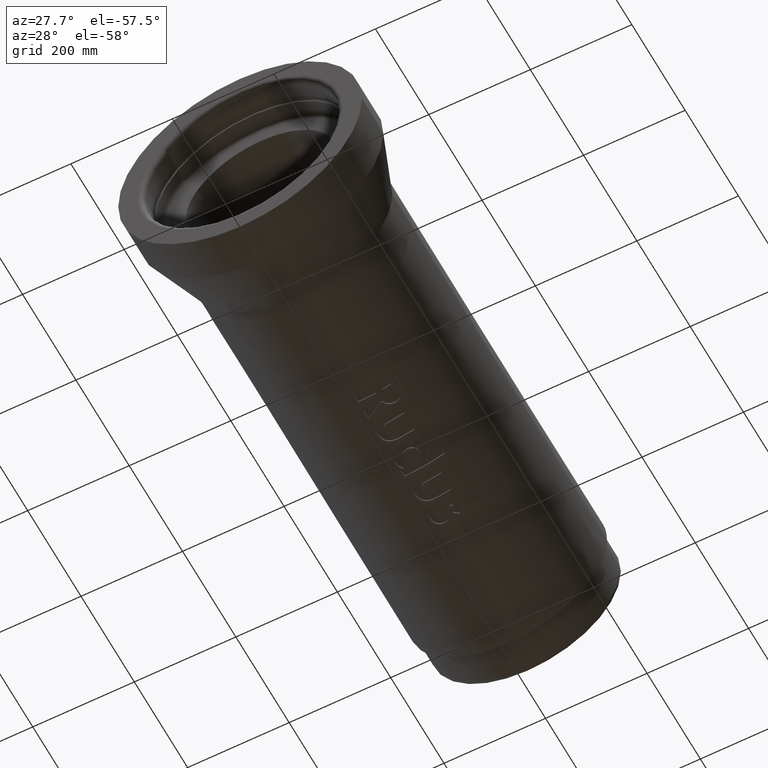
[diagram: clean part render]
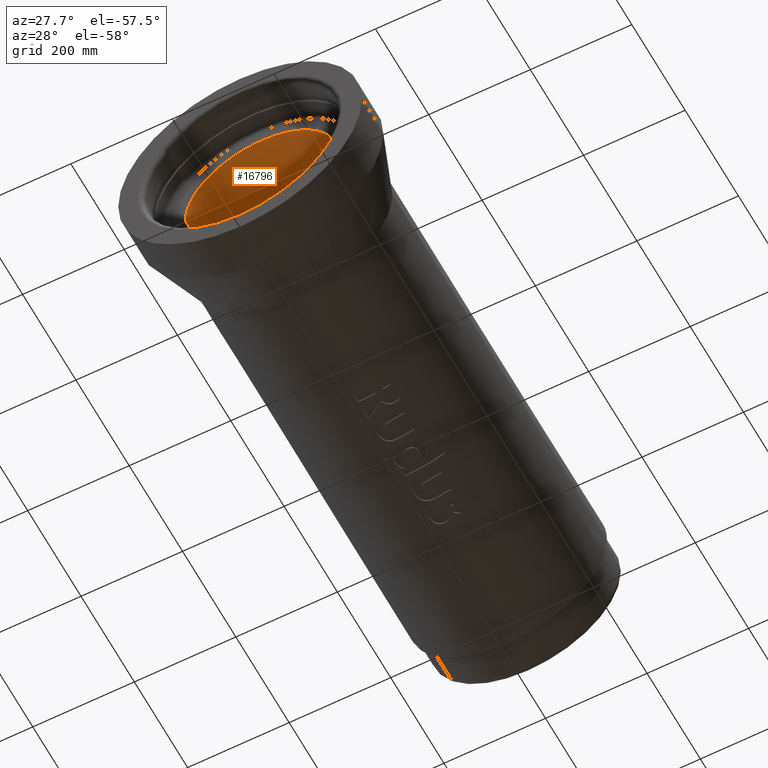
[diagram: same view with one face highlighted and labeled with its STEP entity id]
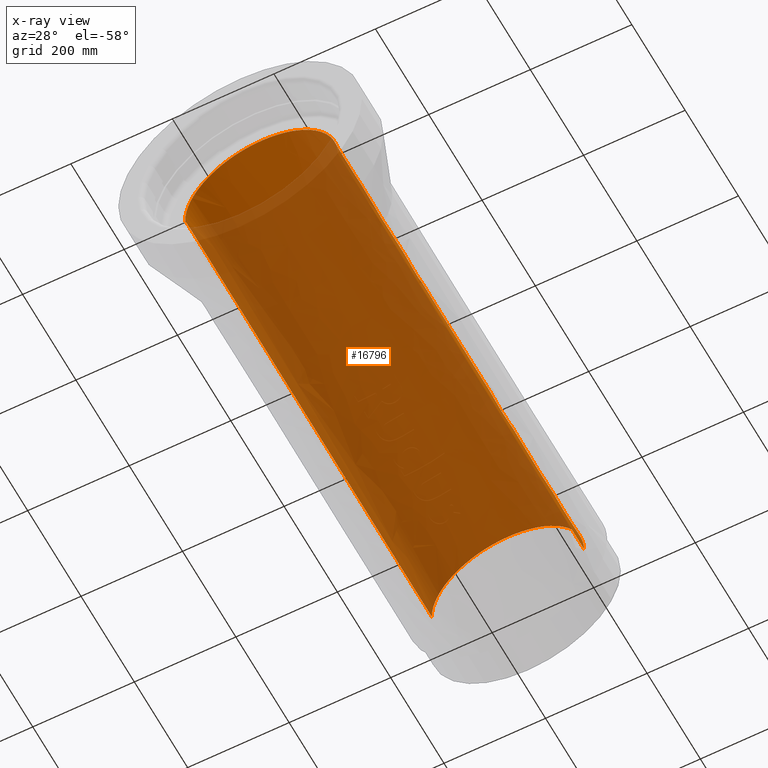
[diagram: x-ray of the same camera — body ghosted, the highlighted face saturated]
A machine part, auxiliary view. The second image highlights one B-rep face of the part: STEP entity #16796.
The next image is the same camera in x-ray: the body ghosted, the highlighted face saturated — about 90% of this face is hidden behind the body in this view.
In plain terms, the highlighted face is a freeform B-spline surface patch.
Its self-contained STEP definition (entity closure, byte-faithful):
#116 = DIRECTION ( 'NONE',  ( 0.0000000000000000000, 0.0000000000000000000, 1.000000000000000000 ) ) ;
#129 = AXIS2_PLACEMENT_3D ( 'NONE', #21053, #4867, #11941 ) ;
#145 = DIRECTION ( 'NONE',  ( 0.0000000000000000000, 0.0000000000000000000, 1.000000000000000000 ) ) ;
#256 = CARTESIAN_POINT ( 'NONE',  ( 144.0987270862369769, -52.83484027567126162, 616.6666666666667425 ) ) ;
#275 = ORIENTED_EDGE ( 'NONE', *, *, #18748, .F. ) ;
#369 = CARTESIAN_POINT ( 'NONE',  ( 77.93635652528307389, -134.1956778306810918, 616.6666666666667425 ) ) ;
#488 = CARTESIAN_POINT ( 'NONE',  ( 128.5697457001414250, -83.56228865582255594, 0.0000000000000000000 ) ) ;
#500 = DIRECTION ( 'NONE',  ( 1.000000000000000000, 0.0000000000000000000, 0.0000000000000000000 ) ) ;
#603 = CARTESIAN_POINT ( 'NONE',  ( 149.9999999999999716, -1.989067379999889695, 925.0000000000000000 ) ) ;
#623 = CIRCLE ( 'NONE', #18715, 150.0000000000000284 ) ;
#724 = CARTESIAN_POINT ( 'NONE',  ( -39.78134759999981895, -149.9999999999999716, 308.3333333333333712 ) ) ;
#733 = CARTESIAN_POINT ( 'NONE',  ( -150.0000000000000000, -1.332267629550188101E-13, 925.0000000000000000 ) ) ;
#806 = CARTESIAN_POINT ( 'NONE',  ( 0.0000000000000000000, 0.0000000000000000000, 0.0000000000000000000 ) ) ;
#950 = CARTESIAN_POINT ( 'NONE',  ( 144.0987270862370622, 52.83484027567155294, 308.3333333333333712 ) ) ;
#1024 = CARTESIAN_POINT ( 'NONE',  ( 0.0000000000000000000, 0.0000000000000000000, 0.0000000000000000000 ) ) ;
#1066 = CARTESIAN_POINT ( 'NONE',  ( 149.9209783891533618, 5.959070446626506978, 0.0000000000000000000 ) ) ;
#1174 = CARTESIAN_POINT ( 'NONE',  ( 128.5697457001414818, 83.56228865582281173, 925.0000000000000000 ) ) ;
#1280 = ORIENTED_EDGE ( 'NONE', *, *, #7692, .F. ) ;
#1289 = CARTESIAN_POINT ( 'NONE',  ( -42.27785154931257239, -143.9186689362234972, 925.0000000000000000 ) ) ;
#1768 = AXIS2_PLACEMENT_3D ( 'NONE', #14487, #5400, #11032 ) ;
#1866 = CIRCLE ( 'NONE', #15074, 150.0000000000000284 ) ;
#1888 = DIRECTION ( 'NONE',  ( 1.000000000000000000, 0.0000000000000000000, 0.0000000000000000000 ) ) ;
#1918 = VERTEX_POINT ( 'NONE', #4773 ) ;
#1999 = CARTESIAN_POINT ( 'NONE',  ( 131.6608222679265054, -71.87091122097643847, 0.0000000000000000000 ) ) ;
#2013 = CARTESIAN_POINT ( 'NONE',  ( 128.5697457001414250, -83.56228865582255594, 616.6666666666667425 ) ) ;
#2015 = DIRECTION ( 'NONE',  ( 0.0000000000000000000, 0.0000000000000000000, 1.000000000000000000 ) ) ;
#2126 = CARTESIAN_POINT ( 'NONE',  ( -77.93635652528283231, -134.1956778306812623, 308.3333333333333712 ) ) ;
#2242 = CARTESIAN_POINT ( 'NONE',  ( 149.9999999999999716, 1.320558246087344401E-13, 616.6666666666667425 ) ) ;
#2259 = ORIENTED_EDGE ( 'NONE', *, *, #2950, .T. ) ;
#2272 = DIRECTION ( 'NONE',  ( 1.000000000000000000, 0.0000000000000000000, 0.0000000000000000000 ) ) ;
#2325 = CARTESIAN_POINT ( 'NONE',  ( 150.0000000000000284, 1.148570609678084874E-13, 925.0000000000000000 ) ) ;
#2452 = CARTESIAN_POINT ( 'NONE',  ( 150.0000000000000284, 0.0000000000000000000, 0.0000000000000000000 ) ) ;
#2579 = CIRCLE ( 'NONE', #5331, 150.0000000000000284 ) ;
#2593 = CIRCLE ( 'NONE', #15032, 150.0000000000000284 ) ;
#2706 = CARTESIAN_POINT ( 'NONE',  ( -39.78134760000001791, 149.9999999999999716, 0.0000000000000000000 ) ) ;
#2720 = EDGE_CURVE ( 'NONE', #16212, #20015, #22361, .T. ) ;
#2819 = CARTESIAN_POINT ( 'NONE',  ( -134.1956778306812907, 77.93635652528286073, 925.0000000000000000 ) ) ;
#2836 = VERTEX_POINT ( 'NONE', #8457 ) ;
#2931 = CARTESIAN_POINT ( 'NONE',  ( -77.93635652528300284, 134.1956778306812623, 0.0000000000000000000 ) ) ;
#2950 = EDGE_CURVE ( 'NONE', #15237, #21206, #10617, .T. ) ;
#2995 = VERTEX_POINT ( 'NONE', #6459 ) ;
#3046 = CARTESIAN_POINT ( 'NONE',  ( 39.78134759999996106, 149.9999999999999716, 308.3333333333333712 ) ) ;
#3217 = CIRCLE ( 'NONE', #6245, 150.0000000000000284 ) ;
#3255 = ORIENTED_EDGE ( 'NONE', *, *, #8690, .T. ) ;
#3397 = CIRCLE ( 'NONE', #10154, 150.0000000000000284 ) ;
#3774 = DIRECTION ( 'NONE',  ( 0.0000000000000000000, 0.0000000000000000000, 1.000000000000000000 ) ) ;
#3905 = CARTESIAN_POINT ( 'NONE',  ( 39.78134760000010317, -149.9999999999998579, 308.3333333333333712 ) ) ;
#3937 = ORIENTED_EDGE ( 'NONE', *, *, #21136, .F. ) ;
#4016 = AXIS2_PLACEMENT_3D ( 'NONE', #5371, #12562, #9130 ) ;
#4021 = CARTESIAN_POINT ( 'NONE',  ( -150.0000000000000000, 39.78134759999987580, 308.3333333333333712 ) ) ;
#4106 = AXIS2_PLACEMENT_3D ( 'NONE', #21314, #10649, #5130 ) ;
#4134 = CARTESIAN_POINT ( 'NONE',  ( 149.9999999999999716, 1.318389841742373392E-13, 308.3333333333333712 ) ) ;
#4229 = CARTESIAN_POINT ( 'NONE',  ( 42.27785154879317986, -143.9186689363760365, 2.775557561562891351E-14 ) ) ;
#4250 = CARTESIAN_POINT ( 'NONE',  ( 77.93635652528307389, -134.1956778306810918, 925.0000000000000000 ) ) ;
#4260 = CARTESIAN_POINT ( 'NONE',  ( -150.0000000000000000, -3.244851242983822784E-14, 5.551115123125782702E-14 ) ) ;
#4271 = CIRCLE ( 'NONE', #7284, 150.0000000000000284 ) ;
#4339 = DIRECTION ( 'NONE',  ( 0.0000000000000000000, 0.0000000000000000000, 1.000000000000000000 ) ) ;
#4414 = CARTESIAN_POINT ( 'NONE',  ( 0.0000000000000000000, 0.0000000000000000000, 925.0000000000000000 ) ) ;
#4479 = CARTESIAN_POINT ( 'NONE',  ( 144.0987270862370622, 52.83484027567155294, 616.6666666666667425 ) ) ;
#4597 = CARTESIAN_POINT ( 'NONE',  ( 148.9831560100520846, 17.77069737734988308, 616.6666666666667425 ) ) ;
#4656 = CARTESIAN_POINT ( 'NONE',  ( 0.0000000000000000000, 0.0000000000000000000, 925.0000000000000000 ) ) ;
#4702 = ORIENTED_EDGE ( 'NONE', *, *, #17115, .T. ) ;
#4709 = CARTESIAN_POINT ( 'NONE',  ( -77.93635652528300284, 134.1956778306812623, 925.0000000000000000 ) ) ;
#4773 = CARTESIAN_POINT ( 'NONE',  ( 5.551115123125782702E-14, -150.0000000000000284, 2.775557561562891351E-14 ) ) ;
#4820 = CARTESIAN_POINT ( 'NONE',  ( 149.9999999999999716, 1.989067380000117957, 308.3333333333333712 ) ) ;
#4843 = EDGE_CURVE ( 'NONE', #21245, #2995, #4271, .T. ) ;
#4867 = DIRECTION ( 'NONE',  ( 0.0000000000000000000, 0.0000000000000000000, 1.000000000000000000 ) ) ;
#5019 = VERTEX_POINT ( 'NONE', #5602 ) ;
#5130 = DIRECTION ( 'NONE',  ( 1.000000000000000000, 0.0000000000000000000, 0.0000000000000000000 ) ) ;
#5251 = CIRCLE ( 'NONE', #18456, 150.0000000000000284 ) ;
#5292 = CARTESIAN_POINT ( 'NONE',  ( 0.0000000000000000000, 0.0000000000000000000, 925.0000000000000000 ) ) ;
#5320 = DIRECTION ( 'NONE',  ( 1.000000000000000000, 0.0000000000000000000, 0.0000000000000000000 ) ) ;
#5331 = AXIS2_PLACEMENT_3D ( 'NONE', #5292, #12245, #22896 ) ;
#5371 = CARTESIAN_POINT ( 'NONE',  ( 0.0000000000000000000, 0.0000000000000000000, 925.0000000000000000 ) ) ;
#5400 = DIRECTION ( 'NONE',  ( 0.0000000000000000000, 0.0000000000000000000, 1.000000000000000000 ) ) ;
#5602 = CARTESIAN_POINT ( 'NONE',  ( -150.0000000000000000, -3.244851242983822784E-14, 5.551115123125782702E-14 ) ) ;
#5669 = CARTESIAN_POINT ( 'NONE',  ( -39.78134759999981895, -149.9999999999999432, 616.6666666666667425 ) ) ;
#5785 = CARTESIAN_POINT ( 'NONE',  ( -149.9999999999998863, -39.78134760000004633, 0.0000000000000000000 ) ) ;
#5787 = DIRECTION ( 'NONE',  ( 1.000000000000000000, 0.0000000000000000000, 0.0000000000000000000 ) ) ;
#5794 = CARTESIAN_POINT ( 'NONE',  ( -106.0660171779820615, -106.0660171779822321, 925.0000000000000000 ) ) ;
#5832 = DIRECTION ( 'NONE',  ( 1.000000000000000000, 0.0000000000000000000, 0.0000000000000000000 ) ) ;
#5904 = CARTESIAN_POINT ( 'NONE',  ( -134.1956778306811771, -77.93635652528300284, 0.0000000000000000000 ) ) ;
#6023 = CARTESIAN_POINT ( 'NONE',  ( 128.5697457001414250, -83.56228865582255594, 308.3333333333333712 ) ) ;
#6075 = CARTESIAN_POINT ( 'NONE',  ( 42.27785154890892017, -143.9186689363420726, 925.0000000000000000 ) ) ;
#6231 = AXIS2_PLACEMENT_3D ( 'NONE', #4414, #15498, #6302 ) ;
#6245 = AXIS2_PLACEMENT_3D ( 'NONE', #7903, #16422, #12979 ) ;
#6302 = DIRECTION ( 'NONE',  ( 1.000000000000000000, 0.0000000000000000000, 0.0000000000000000000 ) ) ;
#6372 = CARTESIAN_POINT ( 'NONE',  ( -134.1956778306812907, 77.93635652528286073, 308.3333333333333712 ) ) ;
#6459 = CARTESIAN_POINT ( 'NONE',  ( -71.87091121979602804, -131.6608222685708824, 925.0000000000000000 ) ) ;
#6485 = CARTESIAN_POINT ( 'NONE',  ( 149.9999999999999716, 1.989067380000117957, 925.0000000000000000 ) ) ;
#6514 = VERTEX_POINT ( 'NONE', #6075 ) ;
#6597 = CARTESIAN_POINT ( 'NONE',  ( 128.5697457001414818, 83.56228865582281173, 616.6666666666667425 ) ) ;
#6993 = ORIENTED_EDGE ( 'NONE', *, *, #11576, .T. ) ;
#7000 = ORIENTED_EDGE ( 'NONE', *, *, #7724, .T. ) ;
#7284 = AXIS2_PLACEMENT_3D ( 'NONE', #9005, #17754, #15870 ) ;
#7318 = CARTESIAN_POINT ( 'NONE',  ( -71.87091121990188469, -131.6608222685130443, 5.551115123125782702E-14 ) ) ;
#7319 = CARTESIAN_POINT ( 'NONE',  ( -143.9186689346923913, -42.27785155452446730, 5.551115123125782702E-14 ) ) ;
#7409 = DIRECTION ( 'NONE',  ( 1.000000000000000000, 0.0000000000000000000, 0.0000000000000000000 ) ) ;
#7433 = CARTESIAN_POINT ( 'NONE',  ( -77.93635652528283231, -134.1956778306812623, 0.0000000000000000000 ) ) ;
#7544 = CARTESIAN_POINT ( 'NONE',  ( -149.9999999999998863, -39.78134760000004633, 925.0000000000000000 ) ) ;
#7659 = CARTESIAN_POINT ( 'NONE',  ( 149.9999999999999716, 1.320558246087344401E-13, 0.0000000000000000000 ) ) ;
#7692 = EDGE_CURVE ( 'NONE', #1918, #22396, #21306, .T. ) ;
#7698 = DIRECTION ( 'NONE',  ( 0.0000000000000000000, 0.0000000000000000000, 1.000000000000000000 ) ) ;
#7724 = EDGE_CURVE ( 'NONE', #18447, #21245, #16403, .T. ) ;
#7778 = CARTESIAN_POINT ( 'NONE',  ( 144.0987270862369769, -52.83484027567126162, 308.3333333333333712 ) ) ;
#7895 = CARTESIAN_POINT ( 'NONE',  ( -77.93635652528283231, -134.1956778306812623, 616.6666666666667425 ) ) ;
#7903 = CARTESIAN_POINT ( 'NONE',  ( 0.0000000000000000000, 0.0000000000000000000, 925.0000000000000000 ) ) ;
#7904 = DIRECTION ( 'NONE',  ( 1.000000000000000000, 0.0000000000000000000, 0.0000000000000000000 ) ) ;
#7910 = ORIENTED_EDGE ( 'NONE', *, *, #9439, .F. ) ;
#7953 = ORIENTED_EDGE ( 'NONE', *, *, #15383, .F. ) ;
#7990 = EDGE_CURVE ( 'NONE', #11011, #21909, #17159, .T. ) ;
#8018 = CARTESIAN_POINT ( 'NONE',  ( -149.9999999999999147, -8.326672684688674053E-14, 616.6666666666667425 ) ) ;
#8119 = CARTESIAN_POINT ( 'NONE',  ( -39.78134760000001791, 149.9999999999999716, 308.3333333333333712 ) ) ;
#8234 = CARTESIAN_POINT ( 'NONE',  ( 149.9209783891533618, 5.959070446626506978, 308.3333333333333712 ) ) ;
#8347 = CARTESIAN_POINT ( 'NONE',  ( 144.0987270862370622, 52.83484027567154584, 925.0000000000000000 ) ) ;
#8377 = ORIENTED_EDGE ( 'NONE', *, *, #15069, .F. ) ;
#8457 = CARTESIAN_POINT ( 'NONE',  ( -143.9186689346583989, -42.27785155464021472, 925.0000000000000000 ) ) ;
#8463 = CARTESIAN_POINT ( 'NONE',  ( 149.9999999999999716, 1.320558246087344401E-13, 925.0000000000000000 ) ) ;
#8634 = ORIENTED_EDGE ( 'NONE', *, *, #11744, .T. ) ;
#8690 = EDGE_CURVE ( 'NONE', #21909, #15237, #16417, .T. ) ;
#8706 = VERTEX_POINT ( 'NONE', #7318 ) ;
#8713 = DIRECTION ( 'NONE',  ( 1.000000000000000000, 0.0000000000000000000, 0.0000000000000000000 ) ) ;
#8720 = VERTEX_POINT ( 'NONE', #15341 ) ;
#8811 = AXIS2_PLACEMENT_3D ( 'NONE', #20713, #22139, #18933 ) ;
#8829 = ORIENTED_EDGE ( 'NONE', *, *, #11661, .F. ) ;
#8979 = CIRCLE ( 'NONE', #4106, 150.0000000000000284 ) ;
#9005 = CARTESIAN_POINT ( 'NONE',  ( 0.0000000000000000000, 0.0000000000000000000, 925.0000000000000000 ) ) ;
#9103 = CARTESIAN_POINT ( 'NONE',  ( 71.87091122024050094, -131.6608222683282179, 925.0000000000000000 ) ) ;
#9130 = DIRECTION ( 'NONE',  ( 1.000000000000000000, 0.0000000000000000000, 0.0000000000000000000 ) ) ;
#9181 = VERTEX_POINT ( 'NONE', #1289 ) ;
#9189 = CARTESIAN_POINT ( 'NONE',  ( 77.93635652528307389, -134.1956778306810918, 308.3333333333333712 ) ) ;
#9298 = CARTESIAN_POINT ( 'NONE',  ( -134.1956778306811771, -77.93635652528300284, 616.6666666666667425 ) ) ;
#9417 = CARTESIAN_POINT ( 'NONE',  ( 149.9209783891533903, -5.959070446626277828, 925.0000000000000000 ) ) ;
#9439 = EDGE_CURVE ( 'NONE', #22396, #13168, #21700, .T. ) ;
#9507 = DIRECTION ( 'NONE',  ( 0.0000000000000000000, 0.0000000000000000000, 1.000000000000000000 ) ) ;
#9534 = CARTESIAN_POINT ( 'NONE',  ( 149.5679903781081350, -11.88338070924674383, 308.3333333333333712 ) ) ;
#9594 = ORIENTED_EDGE ( 'NONE', *, *, #9990, .T. ) ;
#9652 = CARTESIAN_POINT ( 'NONE',  ( 148.9831560100520846, -17.77069737734958466, 308.3333333333333712 ) ) ;
#9859 = CARTESIAN_POINT ( 'NONE',  ( 1.665334536937734811E-13, -150.0000000000000284, 925.0000000000000000 ) ) ;
#9880 = CARTESIAN_POINT ( 'NONE',  ( 77.93635652528294600, 134.1956778306813192, 308.3333333333333712 ) ) ;
#9990 = EDGE_CURVE ( 'NONE', #6514, #11011, #3217, .T. ) ;
#9994 = CARTESIAN_POINT ( 'NONE',  ( -77.93635652528300284, 134.1956778306812623, 616.6666666666667425 ) ) ;
#10107 = CARTESIAN_POINT ( 'NONE',  ( 39.78134759999996106, 149.9999999999999716, 0.0000000000000000000 ) ) ;
#10154 = AXIS2_PLACEMENT_3D ( 'NONE', #13175, #9507, #22520 ) ;
#10224 = CARTESIAN_POINT ( 'NONE',  ( 149.9999999999999716, 1.989067380000117957, 616.6666666666667425 ) ) ;
#10283 = DIRECTION ( 'NONE',  ( 1.000000000000000000, 0.0000000000000000000, 0.0000000000000000000 ) ) ;
#10393 = CIRCLE ( 'NONE', #20226, 150.0000000000000284 ) ;
#10617 = CIRCLE ( 'NONE', #11398, 150.0000000000000284 ) ;
#10649 = DIRECTION ( 'NONE',  ( 0.0000000000000000000, 0.0000000000000000000, 1.000000000000000000 ) ) ;
#10682 = CIRCLE ( 'NONE', #8811, 150.0000000000000284 ) ;
#10760 = EDGE_CURVE ( 'NONE', #21206, #8720, #10682, .T. ) ;
#10872 = CIRCLE ( 'NONE', #22972, 150.0000000000000284 ) ;
#11011 = VERTEX_POINT ( 'NONE', #9103 ) ;
#11032 = DIRECTION ( 'NONE',  ( 1.000000000000000000, 0.0000000000000000000, 0.0000000000000000000 ) ) ;
#11066 = CARTESIAN_POINT ( 'NONE',  ( -77.93635652528283231, -134.1956778306812623, 925.0000000000000000 ) ) ;
#11189 = CARTESIAN_POINT ( 'NONE',  ( -134.1956778306811771, -77.93635652528300284, 925.0000000000000000 ) ) ;
#11221 = DIRECTION ( 'NONE',  ( 0.0000000000000000000, 0.0000000000000000000, 1.000000000000000000 ) ) ;
#11304 = CARTESIAN_POINT ( 'NONE',  ( 148.9831560100520846, -17.77069737734958466, 925.0000000000000000 ) ) ;
#11323 = ORIENTED_EDGE ( 'NONE', *, *, #23161, .F. ) ;
#11346 = CARTESIAN_POINT ( 'NONE',  ( 0.0000000000000000000, 0.0000000000000000000, 0.0000000000000000000 ) ) ;
#11398 = AXIS2_PLACEMENT_3D ( 'NONE', #13177, #17196, #22054 ) ;
#11502 = AXIS2_PLACEMENT_3D ( 'NONE', #11346, #7698, #18455 ) ;
#11515 = CARTESIAN_POINT ( 'NONE',  ( 149.9999999999999716, 1.318389841742373392E-13, 308.3333333333333712 ) ) ;
#11544 = CARTESIAN_POINT ( 'NONE',  ( 39.78134759999996106, 149.9999999999999716, 616.6666666666667425 ) ) ;
#11576 = EDGE_CURVE ( 'NONE', #8720, #20015, #11921, .T. ) ;
#11658 = CARTESIAN_POINT ( 'NONE',  ( 149.5679903781081350, 11.88338070924697121, 308.3333333333333712 ) ) ;
#11661 = EDGE_CURVE ( 'NONE', #8706, #16585, #22824, .T. ) ;
#11668 = DIRECTION ( 'NONE',  ( 0.0000000000000000000, 0.0000000000000000000, 1.000000000000000000 ) ) ;
#11674 = ORIENTED_EDGE ( 'NONE', *, *, #22024, .T. ) ;
#11679 = VERTEX_POINT ( 'NONE', #22285 ) ;
#11744 = EDGE_CURVE ( 'NONE', #2836, #18447, #19460, .T. ) ;
#11745 = CARTESIAN_POINT ( 'NONE',  ( 149.9999999999999716, 1.320558246087344401E-13, 616.6666666666667425 ) ) ;
#11775 = CARTESIAN_POINT ( 'NONE',  ( -77.93635652528300284, 134.1956778306812623, 308.3333333333333712 ) ) ;
#11889 = CARTESIAN_POINT ( 'NONE',  ( 39.78134759999996106, 149.9999999999999716, 925.0000000000000000 ) ) ;
#11921 = B_SPLINE_CURVE_WITH_KNOTS ( 'NONE', 3,
 ( #2325, #11745, #11515, #15078 ),
 .UNSPECIFIED., .F., .F.,
 ( 4, 4 ),
 ( 0.0000000000000000000, 1.000000000000000000 ),
 .UNSPECIFIED. ) ;
#11941 = DIRECTION ( 'NONE',  ( 1.000000000000000000, 0.0000000000000000000, 0.0000000000000000000 ) ) ;
#12005 = CARTESIAN_POINT ( 'NONE',  ( 148.9831560100520846, 17.77069737734988308, 308.3333333333333712 ) ) ;
#12020 = ORIENTED_EDGE ( 'NONE', *, *, #7990, .T. ) ;
#12100 = EDGE_LOOP ( 'NONE', ( #14421, #19588, #8634, #7000, #21426, #11674, #13309, #4702, #9594, #12020, #3255, #2259, #14298, #6993, #17677, #17581, #3937, #275, #7910, #1280, #22449, #8829, #8377, #12271, #11323, #7953 ) ) ;
#12245 = DIRECTION ( 'NONE',  ( 0.0000000000000000000, 0.0000000000000000000, 1.000000000000000000 ) ) ;
#12271 = ORIENTED_EDGE ( 'NONE', *, *, #19695, .F. ) ;
#12562 = DIRECTION ( 'NONE',  ( 0.0000000000000000000, 0.0000000000000000000, 1.000000000000000000 ) ) ;
#12738 = CARTESIAN_POINT ( 'NONE',  ( 149.9209783891533903, -5.959070446626277828, 308.3333333333333712 ) ) ;
#12854 = CARTESIAN_POINT ( 'NONE',  ( -134.1956778306811771, -77.93635652528300284, 308.3333333333333712 ) ) ;
#12970 = CARTESIAN_POINT ( 'NONE',  ( -149.9999999999999432, 39.78134759999987580, 925.0000000000000000 ) ) ;
#12979 = DIRECTION ( 'NONE',  ( 1.000000000000000000, 0.0000000000000000000, 0.0000000000000000000 ) ) ;
#13001 = CARTESIAN_POINT ( 'NONE',  ( 0.0000000000000000000, 0.0000000000000000000, 925.0000000000000000 ) ) ;
#13085 = CARTESIAN_POINT ( 'NONE',  ( 149.5679903781081634, -11.88338070924674383, 925.0000000000000000 ) ) ;
#13168 = VERTEX_POINT ( 'NONE', #22557 ) ;
#13175 = CARTESIAN_POINT ( 'NONE',  ( 0.0000000000000000000, 0.0000000000000000000, 0.0000000000000000000 ) ) ;
#13177 = CARTESIAN_POINT ( 'NONE',  ( 0.0000000000000000000, 0.0000000000000000000, 925.0000000000000000 ) ) ;
#13202 = CARTESIAN_POINT ( 'NONE',  ( 77.93635652528307389, -134.1956778306810918, 0.0000000000000000000 ) ) ;
#13242 = EDGE_CURVE ( 'NONE', #13969, #16212, #623, .T. ) ;
#13309 = ORIENTED_EDGE ( 'NONE', *, *, #19532, .T. ) ;
#13319 = CARTESIAN_POINT ( 'NONE',  ( -134.1956778306812907, 77.93635652528286073, 0.0000000000000000000 ) ) ;
#13435 = CARTESIAN_POINT ( 'NONE',  ( 149.9999999999999716, 1.320558246087344401E-13, 616.6666666666667425 ) ) ;
#13444 = CARTESIAN_POINT ( 'NONE',  ( -149.9999999999999432, -8.326672684688674053E-14, 308.3333333333333712 ) ) ;
#13552 = CARTESIAN_POINT ( 'NONE',  ( -39.78134760000001791, 149.9999999999999716, 925.0000000000000000 ) ) ;
#13674 = CARTESIAN_POINT ( 'NONE',  ( 149.9999999999999716, 1.318389841742373392E-13, 308.3333333333333712 ) ) ;
#13758 = AXIS2_PLACEMENT_3D ( 'NONE', #21496, #145, #5320 ) ;
#13787 = CARTESIAN_POINT ( 'NONE',  ( 149.9209783891533618, 5.959070446626506978, 925.0000000000000000 ) ) ;
#13907 = CARTESIAN_POINT ( 'NONE',  ( 106.0660171779822321, -106.0660171779820757, 925.0000000000000000 ) ) ;
#13969 = VERTEX_POINT ( 'NONE', #1999 ) ;
#14298 = ORIENTED_EDGE ( 'NONE', *, *, #10760, .T. ) ;
#14421 = ORIENTED_EDGE ( 'NONE', *, *, #21269, .F. ) ;
#14487 = CARTESIAN_POINT ( 'NONE',  ( 0.0000000000000000000, 0.0000000000000000000, 0.0000000000000000000 ) ) ;
#14511 = AXIS2_PLACEMENT_3D ( 'NONE', #16570, #16692, #5832 ) ;
#14637 = CARTESIAN_POINT ( 'NONE',  ( 149.5679903781081634, -11.88338070924674383, 616.6666666666667425 ) ) ;
#14657 = EDGE_CURVE ( 'NONE', #21295, #2836, #10393, .T. ) ;
#14751 = CARTESIAN_POINT ( 'NONE',  ( -149.9999999999998863, -39.78134760000004633, 616.6666666666667425 ) ) ;
#14753 = CARTESIAN_POINT ( 'NONE',  ( 0.0000000000000000000, 0.0000000000000000000, 0.0000000000000000000 ) ) ;
#14866 = FACE_OUTER_BOUND ( 'NONE', #12100, .T. ) ;
#14980 = CIRCLE ( 'NONE', #20278, 150.0000000000000284 ) ;
#15000 = CARTESIAN_POINT ( 'NONE',  ( 0.0000000000000000000, 0.0000000000000000000, 0.0000000000000000000 ) ) ;
#15032 = AXIS2_PLACEMENT_3D ( 'NONE', #21608, #17589, #8713 ) ;
#15069 = EDGE_CURVE ( 'NONE', #19137, #8706, #21763, .T. ) ;
#15074 = AXIS2_PLACEMENT_3D ( 'NONE', #13001, #11221, #2272 ) ;
#15078 = CARTESIAN_POINT ( 'NONE',  ( 150.0000000000000284, 0.0000000000000000000, 0.0000000000000000000 ) ) ;
#15179 = DIRECTION ( 'NONE',  ( 1.000000000000000000, 0.0000000000000000000, 0.0000000000000000000 ) ) ;
#15237 = VERTEX_POINT ( 'NONE', #20257 ) ;
#15323 = AXIS2_PLACEMENT_3D ( 'NONE', #806, #4339, #22049 ) ;
#15338 = CARTESIAN_POINT ( 'NONE',  ( 149.5679903781081634, 11.88338070924697121, 0.0000000000000000000 ) ) ;
#15341 = CARTESIAN_POINT ( 'NONE',  ( 150.0000000000000284, 1.148570609678084874E-13, 925.0000000000000000 ) ) ;
#15383 = EDGE_CURVE ( 'NONE', #5019, #20718, #14980, .T. ) ;
#15412 = DIRECTION ( 'NONE',  ( 0.0000000000000000000, 0.0000000000000000000, 1.000000000000000000 ) ) ;
#15456 = CARTESIAN_POINT ( 'NONE',  ( 128.5697457001414818, 83.56228865582281173, 0.0000000000000000000 ) ) ;
#15498 = DIRECTION ( 'NONE',  ( 0.0000000000000000000, 0.0000000000000000000, 1.000000000000000000 ) ) ;
#15570 = CARTESIAN_POINT ( 'NONE',  ( 149.5679903781081634, 11.88338070924697121, 616.6666666666667425 ) ) ;
#15658 = AXIS2_PLACEMENT_3D ( 'NONE', #4656, #17170, #10283 ) ;
#15870 = DIRECTION ( 'NONE',  ( 1.000000000000000000, 0.0000000000000000000, 0.0000000000000000000 ) ) ;
#15881 = B_SPLINE_CURVE_WITH_KNOTS ( 'NONE', 3,
 ( #16534, #8018, #13444, #4260 ),
 .UNSPECIFIED., .F., .F.,
 ( 4, 4 ),
 ( 0.0000000000000000000, 1.000000000000000000 ),
 .UNSPECIFIED. ) ;
#16212 = VERTEX_POINT ( 'NONE', #18211 ) ;
#16403 = CIRCLE ( 'NONE', #6231, 150.0000000000000284 ) ;
#16413 = CARTESIAN_POINT ( 'NONE',  ( 149.9209783891533903, -5.959070446626277828, 616.6666666666667425 ) ) ;
#16417 = CIRCLE ( 'NONE', #13758, 150.0000000000000284 ) ;
#16422 = DIRECTION ( 'NONE',  ( 0.0000000000000000000, 0.0000000000000000000, 1.000000000000000000 ) ) ;
#16471 = CARTESIAN_POINT ( 'NONE',  ( -106.0660171779821184, -106.0660171779821610, 5.551115123125782702E-14 ) ) ;
#16525 = CARTESIAN_POINT ( 'NONE',  ( -39.78134759999981895, -149.9999999999999432, 0.0000000000000000000 ) ) ;
#16534 = CARTESIAN_POINT ( 'NONE',  ( -150.0000000000000000, -1.332267629550188101E-13, 925.0000000000000000 ) ) ;
#16551 = B_SPLINE_SURFACE_WITH_KNOTS ( 'NONE', 3, 3, ( 
 ( #22081, #2242, #4134, #7659 ),
 ( #603, #18296, #19952, #22316 ),
 ( #9417, #16413, #12738, #16641 ),
 ( #13085, #14637, #9534, #20305 ),
 ( #11304, #18534, #9652, #16762 ),
 ( #18180, #256, #7778, #21848 ),
 ( #22199, #2013, #6023, #488 ),
 ( #4250, #369, #9189, #13202 ),
 ( #20424, #18650, #3905, #20066 ),
 ( #16878, #5669, #724, #16525 ),
 ( #11066, #7895, #2126, #7433 ),
 ( #11189, #9298, #12854, #5904 ),
 ( #7544, #14751, #21962, #5785 ),
 ( #12970, #20186, #4021, #21002 ),
 ( #2819, #17107, #6372, #13319 ),
 ( #4709, #9994, #11775, #2931 ),
 ( #13552, #20773, #8119, #2706 ),
 ( #11889, #11544, #3046, #10107 ),
 ( #22777, #19108, #9880, #17332 ),
 ( #1174, #6597, #17447, #15456 ),
 ( #8347, #4479, #950, #17221 ),
 ( #20657, #4597, #12005, #18991 ),
 ( #22662, #15570, #11658, #15338 ),
 ( #13787, #16994, #8234, #1066 ),
 ( #6485, #10224, #4820, #18880 ),
 ( #8463, #13435, #13674, #20889 ) ),
 .UNSPECIFIED., .T., .F., .F.,
 ( 4, 1, 1, 1, 1, 2, 2, 2, 2, 2, 2, 2, 1, 1, 1, 1, 4 ),
 ( 4, 4 ),
 ( 0.0000000000000000000, 0.006250000000000088818, 0.01249999999999995559, 0.01875000000000004441, 0.02499999999999991118, 0.1250000000000000000, 0.2500000000000000000, 0.3750000000000000000, 0.5000000000000000000, 0.6250000000000000000, 0.7500000000000000000, 0.8750000000000000000, 0.9749999999999999778, 0.9812499999999999556, 0.9875000000000000444, 0.9937500000000000222, 1.000000000000000000 ),
 ( 0.0000000000000000000, 1.000000000000000000 ),
 .UNSPECIFIED. ) ;
#16570 = CARTESIAN_POINT ( 'NONE',  ( 0.0000000000000000000, 0.0000000000000000000, 0.0000000000000000000 ) ) ;
#16585 = VERTEX_POINT ( 'NONE', #23291 ) ;
#16641 = CARTESIAN_POINT ( 'NONE',  ( 149.9209783891533903, -5.959070446626277828, 0.0000000000000000000 ) ) ;
#16692 = DIRECTION ( 'NONE',  ( 0.0000000000000000000, 0.0000000000000000000, 1.000000000000000000 ) ) ;
#16762 = CARTESIAN_POINT ( 'NONE',  ( 148.9831560100520846, -17.77069737734958466, 0.0000000000000000000 ) ) ;
#16772 = CARTESIAN_POINT ( 'NONE',  ( 143.9186689365149050, -42.27785154832057657, 925.0000000000000000 ) ) ;
#16796 = ADVANCED_FACE ( 'NONE', ( #14866 ), #16551, .F. ) ;
#16803 = CARTESIAN_POINT ( 'NONE',  ( 106.0660171779821894, -106.0660171779820899, 0.0000000000000000000 ) ) ;
#16878 = CARTESIAN_POINT ( 'NONE',  ( -39.78134759999981895, -149.9999999999999432, 925.0000000000000000 ) ) ;
#16994 = CARTESIAN_POINT ( 'NONE',  ( 149.9209783891533618, 5.959070446626506978, 616.6666666666667425 ) ) ;
#17107 = CARTESIAN_POINT ( 'NONE',  ( -134.1956778306812907, 77.93635652528286073, 616.6666666666667425 ) ) ;
#17115 = EDGE_CURVE ( 'NONE', #22419, #6514, #22908, .T. ) ;
#17159 = CIRCLE ( 'NONE', #15658, 150.0000000000000284 ) ;
#17170 = DIRECTION ( 'NONE',  ( 0.0000000000000000000, 0.0000000000000000000, 1.000000000000000000 ) ) ;
#17196 = DIRECTION ( 'NONE',  ( 0.0000000000000000000, 0.0000000000000000000, 1.000000000000000000 ) ) ;
#17221 = CARTESIAN_POINT ( 'NONE',  ( 144.0987270862370622, 52.83484027567154584, 0.0000000000000000000 ) ) ;
#17332 = CARTESIAN_POINT ( 'NONE',  ( 77.93635652528294600, 134.1956778306813192, 0.0000000000000000000 ) ) ;
#17447 = CARTESIAN_POINT ( 'NONE',  ( 128.5697457001414818, 83.56228865582281173, 308.3333333333333712 ) ) ;
#17581 = ORIENTED_EDGE ( 'NONE', *, *, #13242, .F. ) ;
#17589 = DIRECTION ( 'NONE',  ( 0.0000000000000000000, 0.0000000000000000000, 1.000000000000000000 ) ) ;
#17677 = ORIENTED_EDGE ( 'NONE', *, *, #2720, .F. ) ;
#17754 = DIRECTION ( 'NONE',  ( 0.0000000000000000000, 0.0000000000000000000, 1.000000000000000000 ) ) ;
#17974 = CARTESIAN_POINT ( 'NONE',  ( -131.6608222681658162, -71.87091122053807624, 925.0000000000000000 ) ) ;
#18180 = CARTESIAN_POINT ( 'NONE',  ( 144.0987270862369769, -52.83484027567126162, 925.0000000000000000 ) ) ;
#18211 = CARTESIAN_POINT ( 'NONE',  ( 143.9186689365457710, -42.27785154821535230, 0.0000000000000000000 ) ) ;
#18296 = CARTESIAN_POINT ( 'NONE',  ( 149.9999999999999716, -1.989067379999889695, 616.6666666666667425 ) ) ;
#18392 = EDGE_CURVE ( 'NONE', #16585, #1918, #8979, .T. ) ;
#18401 = CARTESIAN_POINT ( 'NONE',  ( 0.0000000000000000000, 0.0000000000000000000, 925.0000000000000000 ) ) ;
#18447 = VERTEX_POINT ( 'NONE', #17974 ) ;
#18455 = DIRECTION ( 'NONE',  ( 1.000000000000000000, 0.0000000000000000000, 0.0000000000000000000 ) ) ;
#18456 = AXIS2_PLACEMENT_3D ( 'NONE', #18889, #11668, #7904 ) ;
#18534 = CARTESIAN_POINT ( 'NONE',  ( 148.9831560100520846, -17.77069737734958466, 616.6666666666667425 ) ) ;
#18650 = CARTESIAN_POINT ( 'NONE',  ( 39.78134760000010317, -149.9999999999998863, 616.6666666666667425 ) ) ;
#18715 = AXIS2_PLACEMENT_3D ( 'NONE', #15000, #19002, #500 ) ;
#18748 = EDGE_CURVE ( 'NONE', #13168, #20919, #2593, .T. ) ;
#18880 = CARTESIAN_POINT ( 'NONE',  ( 149.9999999999999716, 1.989067380000117957, 0.0000000000000000000 ) ) ;
#18889 = CARTESIAN_POINT ( 'NONE',  ( 0.0000000000000000000, 0.0000000000000000000, 0.0000000000000000000 ) ) ;
#18933 = DIRECTION ( 'NONE',  ( 1.000000000000000000, 0.0000000000000000000, 0.0000000000000000000 ) ) ;
#18991 = CARTESIAN_POINT ( 'NONE',  ( 148.9831560100520846, 17.77069737734988308, 0.0000000000000000000 ) ) ;
#19002 = DIRECTION ( 'NONE',  ( 0.0000000000000000000, 0.0000000000000000000, 1.000000000000000000 ) ) ;
#19108 = CARTESIAN_POINT ( 'NONE',  ( 77.93635652528294600, 134.1956778306813192, 616.6666666666667425 ) ) ;
#19137 = VERTEX_POINT ( 'NONE', #16471 ) ;
#19460 = CIRCLE ( 'NONE', #4016, 150.0000000000000284 ) ;
#19532 = EDGE_CURVE ( 'NONE', #9181, #22419, #1866, .T. ) ;
#19588 = ORIENTED_EDGE ( 'NONE', *, *, #14657, .T. ) ;
#19692 = CARTESIAN_POINT ( 'NONE',  ( 0.0000000000000000000, 0.0000000000000000000, 925.0000000000000000 ) ) ;
#19695 = EDGE_CURVE ( 'NONE', #11679, #19137, #10872, .T. ) ;
#19952 = CARTESIAN_POINT ( 'NONE',  ( 149.9999999999999716, -1.989067379999889695, 308.3333333333333712 ) ) ;
#20015 = VERTEX_POINT ( 'NONE', #2452 ) ;
#20066 = CARTESIAN_POINT ( 'NONE',  ( 39.78134760000010317, -149.9999999999998863, 0.0000000000000000000 ) ) ;
#20186 = CARTESIAN_POINT ( 'NONE',  ( -149.9999999999999432, 39.78134759999987580, 616.6666666666667425 ) ) ;
#20226 = AXIS2_PLACEMENT_3D ( 'NONE', #18401, #3774, #1888 ) ;
#20257 = CARTESIAN_POINT ( 'NONE',  ( 131.6608222679842868, -71.87091122087056760, 925.0000000000000000 ) ) ;
#20278 = AXIS2_PLACEMENT_3D ( 'NONE', #1024, #15412, #15179 ) ;
#20305 = CARTESIAN_POINT ( 'NONE',  ( 149.5679903781081634, -11.88338070924674383, 0.0000000000000000000 ) ) ;
#20424 = CARTESIAN_POINT ( 'NONE',  ( 39.78134760000010317, -149.9999999999998863, 925.0000000000000000 ) ) ;
#20657 = CARTESIAN_POINT ( 'NONE',  ( 148.9831560100520846, 17.77069737734988308, 925.0000000000000000 ) ) ;
#20713 = CARTESIAN_POINT ( 'NONE',  ( 0.0000000000000000000, 0.0000000000000000000, 925.0000000000000000 ) ) ;
#20718 = VERTEX_POINT ( 'NONE', #7319 ) ;
#20773 = CARTESIAN_POINT ( 'NONE',  ( -39.78134760000001791, 149.9999999999999716, 616.6666666666667425 ) ) ;
#20889 = CARTESIAN_POINT ( 'NONE',  ( 149.9999999999999716, 1.320558246087344401E-13, 0.0000000000000000000 ) ) ;
#20919 = VERTEX_POINT ( 'NONE', #16803 ) ;
#21002 = CARTESIAN_POINT ( 'NONE',  ( -149.9999999999999432, 39.78134759999987580, 0.0000000000000000000 ) ) ;
#21053 = CARTESIAN_POINT ( 'NONE',  ( 0.0000000000000000000, 0.0000000000000000000, 0.0000000000000000000 ) ) ;
#21136 = EDGE_CURVE ( 'NONE', #20919, #13969, #5251, .T. ) ;
#21206 = VERTEX_POINT ( 'NONE', #16772 ) ;
#21245 = VERTEX_POINT ( 'NONE', #5794 ) ;
#21269 = EDGE_CURVE ( 'NONE', #21295, #5019, #15881, .T. ) ;
#21295 = VERTEX_POINT ( 'NONE', #733 ) ;
#21306 = CIRCLE ( 'NONE', #14511, 150.0000000000000284 ) ;
#21314 = CARTESIAN_POINT ( 'NONE',  ( 0.0000000000000000000, 0.0000000000000000000, 0.0000000000000000000 ) ) ;
#21426 = ORIENTED_EDGE ( 'NONE', *, *, #4843, .T. ) ;
#21496 = CARTESIAN_POINT ( 'NONE',  ( 0.0000000000000000000, 0.0000000000000000000, 925.0000000000000000 ) ) ;
#21608 = CARTESIAN_POINT ( 'NONE',  ( 0.0000000000000000000, 0.0000000000000000000, 0.0000000000000000000 ) ) ;
#21700 = CIRCLE ( 'NONE', #11502, 150.0000000000000284 ) ;
#21763 = CIRCLE ( 'NONE', #1768, 150.0000000000000284 ) ;
#21848 = CARTESIAN_POINT ( 'NONE',  ( 144.0987270862369769, -52.83484027567126162, 0.0000000000000000000 ) ) ;
#21909 = VERTEX_POINT ( 'NONE', #13907 ) ;
#21962 = CARTESIAN_POINT ( 'NONE',  ( -149.9999999999998863, -39.78134760000004633, 308.3333333333333712 ) ) ;
#22024 = EDGE_CURVE ( 'NONE', #2995, #9181, #2579, .T. ) ;
#22049 = DIRECTION ( 'NONE',  ( 1.000000000000000000, 0.0000000000000000000, 0.0000000000000000000 ) ) ;
#22054 = DIRECTION ( 'NONE',  ( 1.000000000000000000, 0.0000000000000000000, 0.0000000000000000000 ) ) ;
#22081 = CARTESIAN_POINT ( 'NONE',  ( 149.9999999999999716, 1.320558246087344401E-13, 925.0000000000000000 ) ) ;
#22139 = DIRECTION ( 'NONE',  ( 0.0000000000000000000, 0.0000000000000000000, 1.000000000000000000 ) ) ;
#22199 = CARTESIAN_POINT ( 'NONE',  ( 128.5697457001414250, -83.56228865582255594, 925.0000000000000000 ) ) ;
#22285 = CARTESIAN_POINT ( 'NONE',  ( -131.6608222681132361, -71.87091122063441162, 5.551115123125782702E-14 ) ) ;
#22316 = CARTESIAN_POINT ( 'NONE',  ( 149.9999999999999716, -1.989067379999889695, 0.0000000000000000000 ) ) ;
#22361 = CIRCLE ( 'NONE', #129, 150.0000000000000284 ) ;
#22396 = VERTEX_POINT ( 'NONE', #4229 ) ;
#22419 = VERTEX_POINT ( 'NONE', #9859 ) ;
#22449 = ORIENTED_EDGE ( 'NONE', *, *, #18392, .F. ) ;
#22520 = DIRECTION ( 'NONE',  ( 1.000000000000000000, 0.0000000000000000000, 0.0000000000000000000 ) ) ;
#22540 = AXIS2_PLACEMENT_3D ( 'NONE', #19692, #116, #7409 ) ;
#22557 = CARTESIAN_POINT ( 'NONE',  ( 71.87091122033680790, -131.6608222682756661, 0.0000000000000000000 ) ) ;
#22662 = CARTESIAN_POINT ( 'NONE',  ( 149.5679903781081634, 11.88338070924697121, 925.0000000000000000 ) ) ;
#22777 = CARTESIAN_POINT ( 'NONE',  ( 77.93635652528294600, 134.1956778306813192, 925.0000000000000000 ) ) ;
#22824 = CIRCLE ( 'NONE', #15323, 150.0000000000000284 ) ;
#22896 = DIRECTION ( 'NONE',  ( 1.000000000000000000, 0.0000000000000000000, 0.0000000000000000000 ) ) ;
#22908 = CIRCLE ( 'NONE', #22540, 150.0000000000000284 ) ;
#22972 = AXIS2_PLACEMENT_3D ( 'NONE', #14753, #2015, #5787 ) ;
#23161 = EDGE_CURVE ( 'NONE', #20718, #11679, #3397, .T. ) ;
#23291 = CARTESIAN_POINT ( 'NONE',  ( -42.27785154920726995, -143.9186689362544200, 2.775557561562891351E-14 ) ) ;